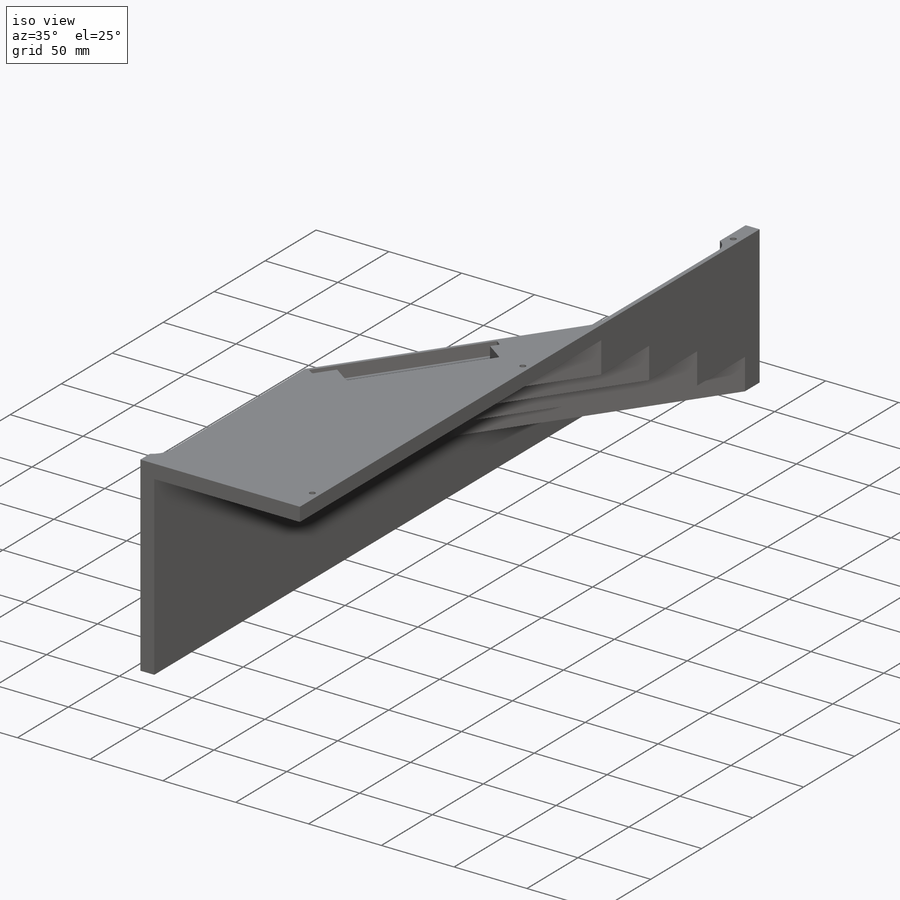
[diagram: iso view]
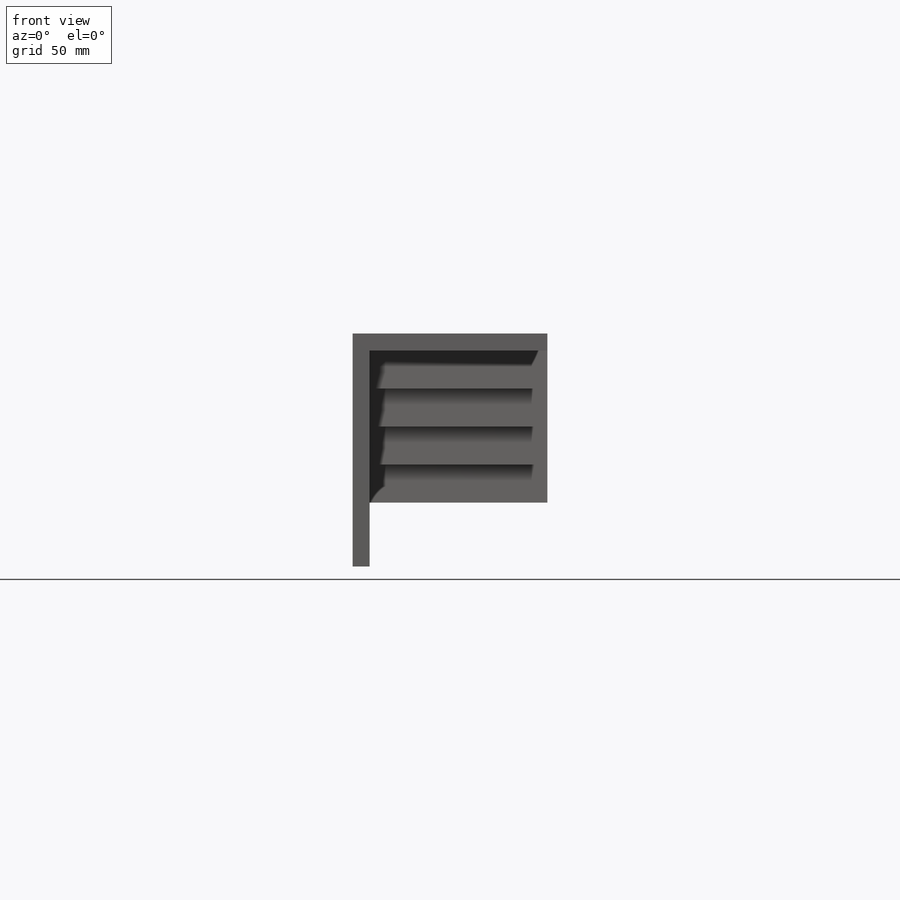
[diagram: front view]
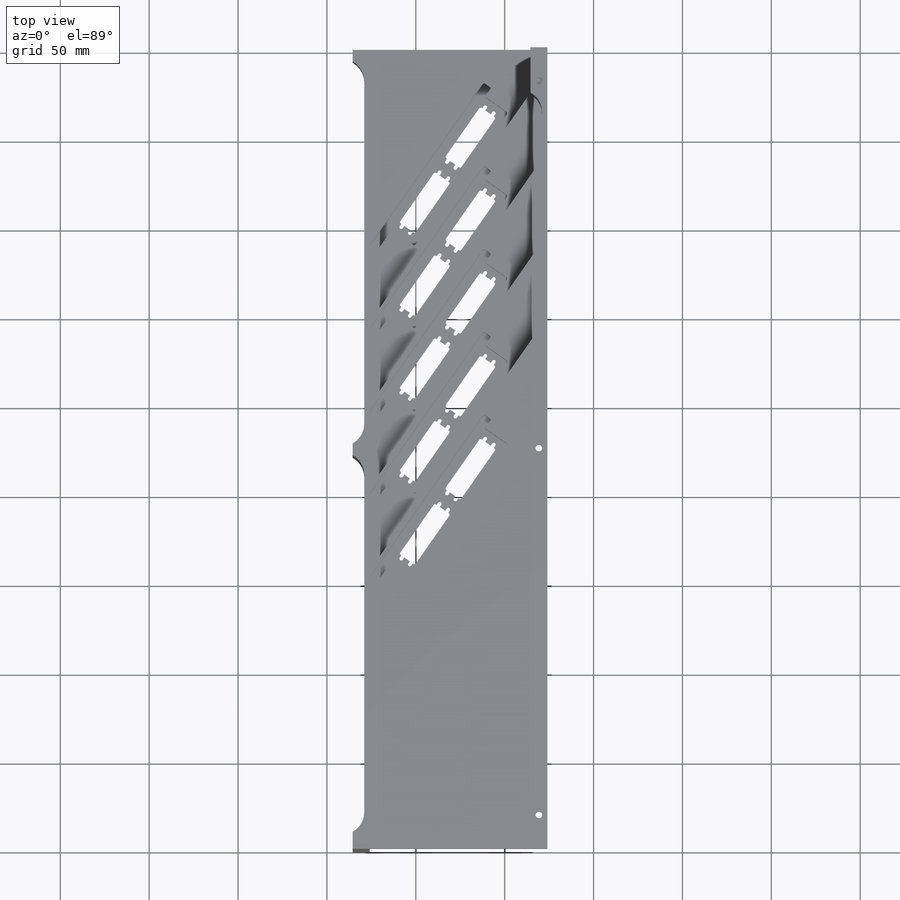
[diagram: top view]
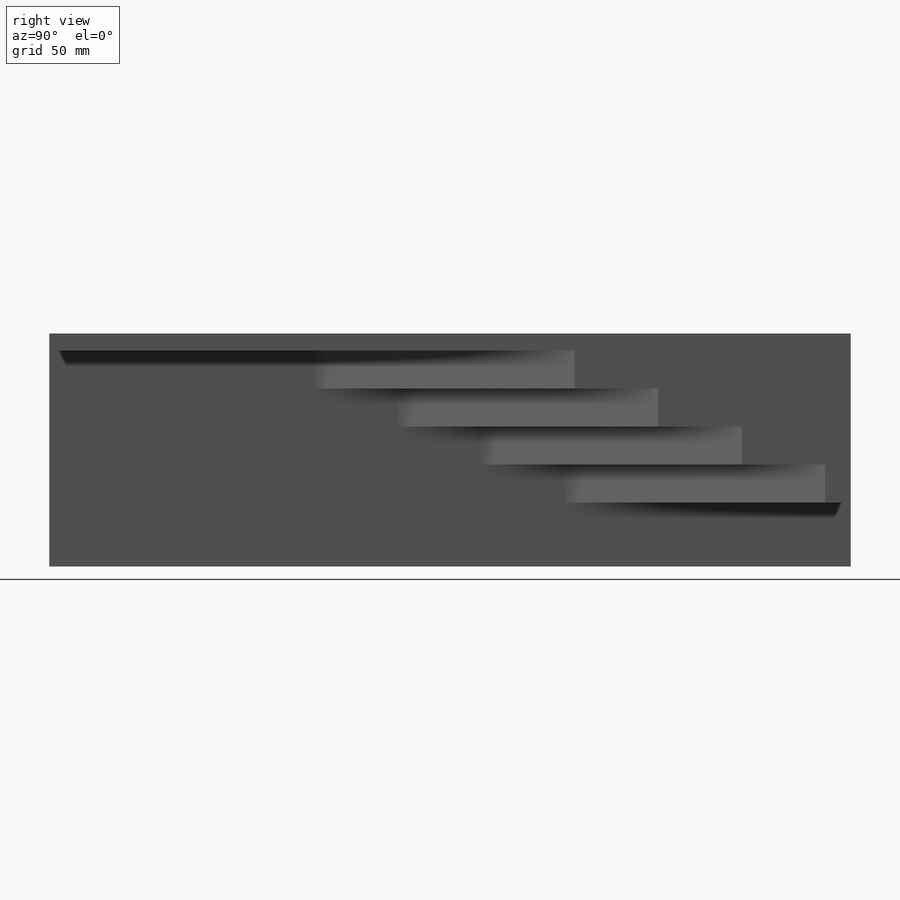
[diagram: right view]
SOLIDWORKS PART (.sldprt)
format: sldprt  version: not decoded by parser v0  size: 1,283,584 bytes
history: native  units: mm
features: sketch x20, cut_extrude x12, fillet x7, extrude x3, pattern_linear x2, hole x2, material x1, plane x1 (+11 scaffold rows collapsed)
feature tree (59):
  scaffold x11  (default folders/planes/origin — collapsed)
  material  "6061-T6 (SS)"
  sketch  "Sketch1"  dims[D1=374.0mm D2=451.0mm D3=~163.403481mm D4=~291.851918mm]
  extrude  "Boss-Extrude1"  Depth=157.625mm
  sketch  "Sketch2"  dims[c1.D1=2.06mm c1.D2=~31.636795mm c2.D2=35.0deg c2.D3=5.84mm c2.D4=37.7mm c2.D5=1.41mm c2.D6=34.7mm c3.D2=~31.276011mm c4.D2=~64.33291deg c5.D2=~595.964717mm c6.D2=35.0deg]
  cut_extrude  "Cut-Extrude1"  [1 undecoded]
  fillet  "Fillet1"  Radius=1mm
  pattern_linear  "LPattern2"  Count1=2 Count2=1 Spacing1=44.7mm Spacing2=10mm
  pattern_linear  "LPattern1"  Count1=5 Count2=1 Spacing1=47mm Spacing2=10mm
  plane  "Plane1"
  sketch  "Sketch6"  dims[c1.D1=9.525mm c1.D2=21.3973mm c1.D3=~26.958093mm c1.D4=2.0mm c2.D1=9.525mm c2.D5=22.0mm c2.D6=9.525mm c3.D1=55.0mm c3.D2=21.3973mm c3.D3=~26.958025mm c3.D4=2.0mm c3.D5=9.525mm c4.D1=55.0mm]
  cut_extrude  "Cut-Extrude3"  Depth=500mm
  sketch  "all pockets"  dims[c1.D8=1.0mm c1.D14=1.0mm c1.D1=~3.605801mm c2.D1=~125.561442deg c3.D1=4.0mm c3.D2=4.56mm c3.D3=4.56mm c3.D4=3.0mm c3.D5=3.0mm c3.D6=~4.987497mm c4.D6=145.0deg c5.D6=15.0mm c5.D7=6.0mm c5.D4=1.0mm c5.D1=1.0mm c5.D2=4.0mm c5.D3=6.0mm c6.D4=3.0mm c6.D5=4.56mm c6.D6=15.0mm c6.D7=4.56mm c6.D1=4.0mm c7.D4=1.0mm c7.D7=4.56mm c7.D10=15.0mm c7.D11=4.56mm c7.D12=~110.914393mm c7.D13=5.08mm c8.D12=6.0mm c8.D7=4.56mm c8.D2=5.0]
  sketch  "Sketch29"
  cut_extrude  "Cut-Extrude18"  Depth=0.9mm
  sketch  "Sketch30"
  cut_extrude  "Cut-Extrude19"  Depth=0.9mm
  sketch  "Sketch31"
  cut_extrude  "Cut-Extrude20"  Depth=0.9mm
  sketch  "Sketch32"
  cut_extrude  "Cut-Extrude21"  Depth=0.9mm
  sketch  "Sketch33"
  cut_extrude  "Cut-Extrude22"  Depth=0.9mm
  sketch  "Sketch14"  dims[D1=100.0mm]
  extrude  "Boss-Extrude2"  [1 undecoded]
  sketch  "Sketch15"  dims[D1=300.0mm]
  cut_extrude  "Cut-Extrude23"  [1 undecoded]
  sketch  "Sketch34"  dims[c1.D1=3.0mm c1.D2=12.7mm c1.D3=9.525mm c2.D2=9.525mm c2.D3=9.525mm]
  cut_extrude  "Cut-Extrude24"  Depth=9.525mm
  sketch  "Sketch35"  dims[c1.D1=9.525mm c1.D2=12.7mm c2.D1=0.0mm]
  cut_extrude  "Cut-Extrude28"  [1 undecoded]
  fillet  "Fillet10"  Radius=12.7mm
  sketch  "Sketch48"  dims[D1=3.0mm D2=25.4mm D3=9.525mm D4=3.0mm]
  extrude  "Boss-Extrude5"  Depth=10mm
  fillet  "Fillet12"  Radius=12.7mm
  fillet  "Fillet17"  Radius=12.7mm
  fillet  "Fillet14"  Radius=12.7mm
  sketch  "Sketch50"
  cut_extrude  "Cut-Extrude30"  [1 undecoded]
  fillet  "Fillet15"  Radius=12.7mm
  sketch  "Sketch51"  dims[D1=9.525mm]
  cut_extrude  "Cut-Extrude31"  Depth=3mm
  fillet  "Fillet16"  Radius=12.7mm
  hole  "#10-24 Tapped Hole4"  Diameter=3.7973mm Depth=12.83mm
  sketch  "Sketch53"
  sketch  "Sketch52"  dims[hole-wizard template sketch: 47 standard entries collapsed; hole parameters kept: c15.Tap Drill Depth=12.83mm c15.D3=~14.816244mm c15.Drill Angle=118.0deg]
  hole  "#10-24 Tapped Hole5"  Diameter=3.7973mm Depth=12.83mm
  sketch  "Sketch55"  dims[D1=19.05mm]
  sketch  "Sketch54"  dims[hole-wizard template sketch: 47 standard entries collapsed; hole parameters kept: c15.Tap Drill Depth=12.83mm c15.D3=~14.816244mm c15.Drill Angle=118.0deg]
decode coverage: 34 of 46 modeling features carry decoded parameters
note: ~ marks probable driven/reference dimensions
note: 5 parameter values undecoded
summary: no parameter record found for 5 features
note: suppression state not decoded; provenance and decode notes live in map.json
